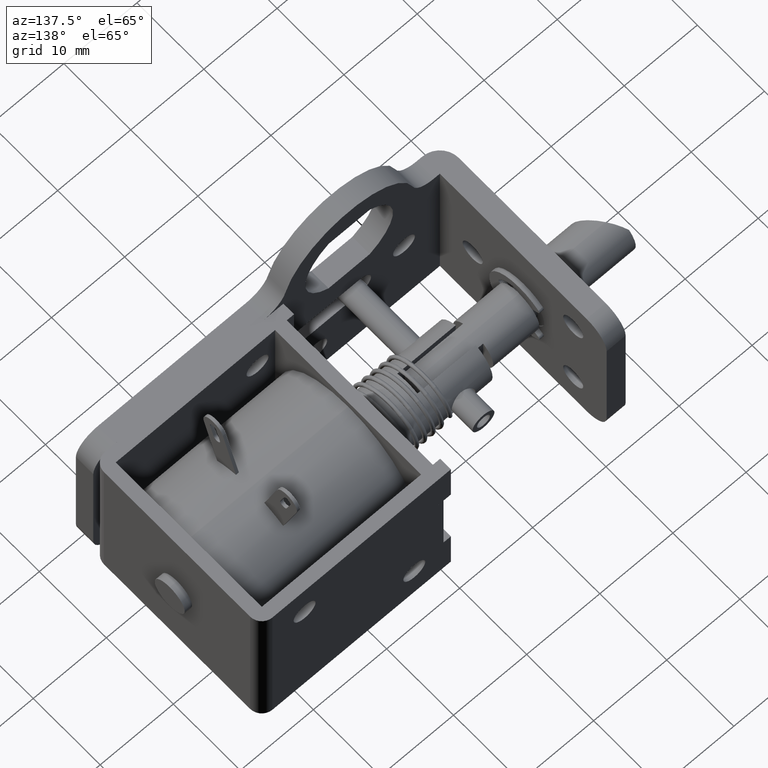
[diagram: clean part render]
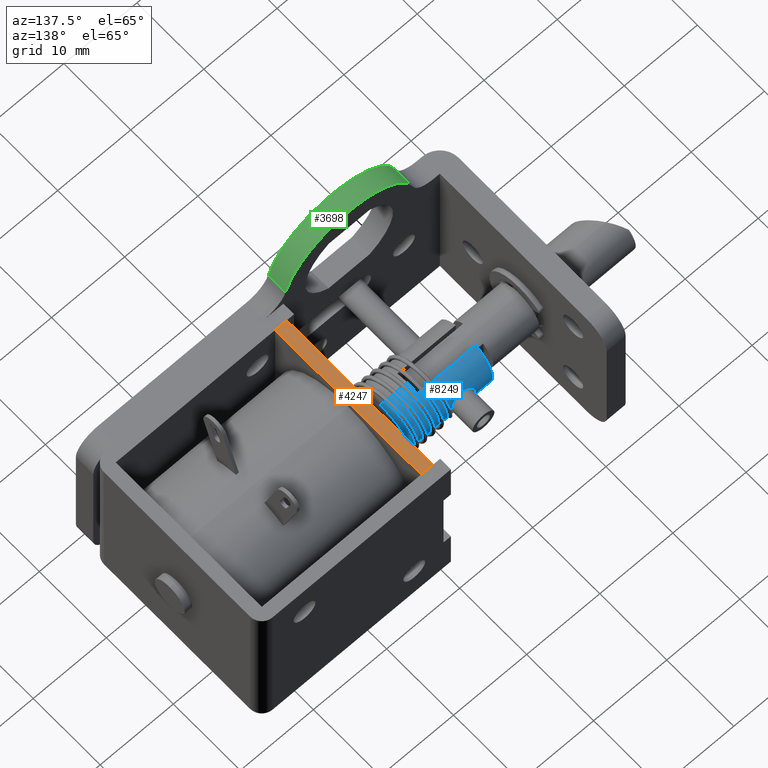
[diagram: same view with three faces highlighted in distinct colors, each labeled with its STEP entity id]
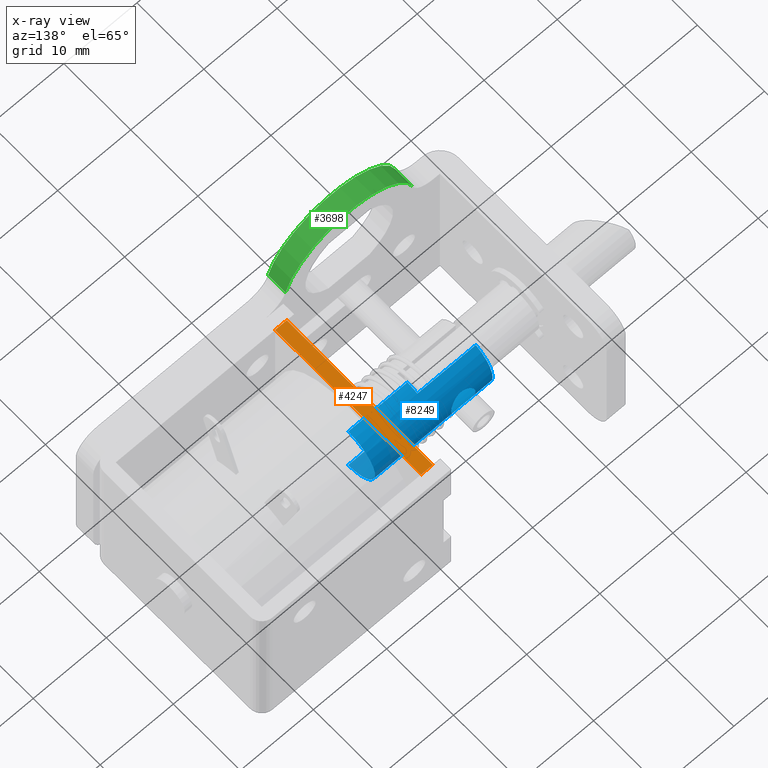
[diagram: x-ray of the same camera — body ghosted, the three highlighted faces saturated]
A machine part, auxiliary view with three faces highlighted in distinct colors.
The next image is the same camera in x-ray (body ghosted, the three faces saturated) — at least one of them is partly hidden behind the body in this view.
Their STEP definitions:

[orange] entity #4247 — the highlighted planar face has unit normal (0, 0, -1).
#291 = VECTOR ( 'NONE', #4824, 1000.000000000000000 ) ;
#567 = VECTOR ( 'NONE', #3996, 1000.000000000000000 ) ;
#1374 = CARTESIAN_POINT ( 'NONE',  ( 11.60000599999978000, 4.199999999999844700, 2.571673343026899800E-016 ) ) ;
#1510 = CARTESIAN_POINT ( 'NONE',  ( 10.00000000000000000, 26.00000000000000000, 1.591988259969080000E-015 ) ) ;
#1900 = EDGE_CURVE ( 'NONE', #6036, #8505, #2802, .T. ) ;
#2165 = DIRECTION ( 'NONE',  ( -0.0000000000000000000, -1.000000000000000000, -6.123031769111888800E-017 ) ) ;
#2702 = ORIENTED_EDGE ( 'NONE', *, *, #9634, .F. ) ;
#2714 = LINE ( 'NONE', #7247, #567 ) ;
#2802 = LINE ( 'NONE', #7826, #6842 ) ;
#3596 = ORIENTED_EDGE ( 'NONE', *, *, #8172, .T. ) ;
#3878 = PLANE ( 'NONE',  #8404 ) ;
#3996 = DIRECTION ( 'NONE',  ( -0.0000000000000000000, -1.000000000000000000, -6.123031769111888800E-017 ) ) ;
#4131 = ORIENTED_EDGE ( 'NONE', *, *, #1900, .T. ) ;
#4208 = VERTEX_POINT ( 'NONE', #1374 ) ;
#4247 = ADVANCED_FACE ( 'NONE', ( #5502 ), #3878, .F. ) ;
#4824 = DIRECTION ( 'NONE',  ( -1.000000000000000000, 0.0000000000000000000, 0.0000000000000000000 ) ) ;
#4967 = VECTOR ( 'NONE', #9118, 1000.000000000000000 ) ;
#5109 = VERTEX_POINT ( 'NONE', #10180 ) ;
#5502 = FACE_OUTER_BOUND ( 'NONE', #9276, .T. ) ;
#5509 = DIRECTION ( 'NONE',  ( 0.0000000000000000000, 1.000000000000000000, 6.123031769111888800E-017 ) ) ;
#6036 = VERTEX_POINT ( 'NONE', #1510 ) ;
#6287 = CARTESIAN_POINT ( 'NONE',  ( 10.00000000000000000, 4.199999999999844700, 2.571673343026899800E-016 ) ) ;
#6683 = ORIENTED_EDGE ( 'NONE', *, *, #8135, .F. ) ;
#6842 = VECTOR ( 'NONE', #2165, 1000.000000000000000 ) ;
#7141 = LINE ( 'NONE', #7455, #4967 ) ;
#7247 = CARTESIAN_POINT ( 'NONE',  ( 11.60000599999978000, 26.00000000000000000, 1.591988259969080000E-015 ) ) ;
#7455 = CARTESIAN_POINT ( 'NONE',  ( 1010.000000000000000, 4.199999999999844700, 2.571673343026899800E-016 ) ) ;
#7826 = CARTESIAN_POINT ( 'NONE',  ( 10.00000000000000000, 26.00000000000000000, 1.591988259969080000E-015 ) ) ;
#8135 = EDGE_CURVE ( 'NONE', #5109, #4208, #2714, .T. ) ;
#8172 = EDGE_CURVE ( 'NONE', #5109, #6036, #8703, .T. ) ;
#8404 = AXIS2_PLACEMENT_3D ( 'NONE', #9605, #10425, #5509 ) ;
#8505 = VERTEX_POINT ( 'NONE', #6287 ) ;
#8703 = LINE ( 'NONE', #8950, #291 ) ;
#8950 = CARTESIAN_POINT ( 'NONE',  ( 1010.000000000000000, 26.00000000000000000, 1.591988259969080000E-015 ) ) ;
#9118 = DIRECTION ( 'NONE',  ( -1.000000000000000000, 0.0000000000000000000, 0.0000000000000000000 ) ) ;
#9276 = EDGE_LOOP ( 'NONE', ( #4131, #2702, #6683, #3596 ) ) ;
#9605 = CARTESIAN_POINT ( 'NONE',  ( 1010.000000000000000, 26.00000000000000000, 1.591988259969080000E-015 ) ) ;
#9634 = EDGE_CURVE ( 'NONE', #4208, #8505, #7141, .T. ) ;
#10180 = CARTESIAN_POINT ( 'NONE',  ( 11.60000599999978000, 26.00000000000000000, 1.591988259969080000E-015 ) ) ;
#10425 = DIRECTION ( 'NONE',  ( 0.0000000000000000000, 6.123031769111888800E-017, -1.000000000000000000 ) ) ;

[blue] entity #8249 — the highlighted cylindrical surface (partial cylindrical patch) has radius 4 mm, axis along (1, 0, 0).
#204 = CARTESIAN_POINT ( 'NONE',  ( -0.06753559038307827000, 18.76785964583641000, -12.59604475133482600 ) ) ;
#220 = CARTESIAN_POINT ( 'NONE',  ( -0.5000000000000560700, 18.74383040220025300, -9.350000000000001400 ) ) ;
#241 = CARTESIAN_POINT ( 'NONE',  ( 1.105737245415268300, 19.08120923763093700, -10.56346833556857100 ) ) ;
#252 = CIRCLE ( 'NONE', #5966, 3.999999999999998200 ) ;
#256 = CARTESIAN_POINT ( 'NONE',  ( -2.150057528765353200, 19.10002373061292100, -11.10822098507555300 ) ) ;
#261 = LINE ( 'NONE', #5452, #6464 ) ;
#292 = CARTESIAN_POINT ( 'NONE',  ( -0.7173006319648996800, 18.74383040220041600, -12.65000000000000700 ) ) ;
#312 = DIRECTION ( 'NONE',  ( -1.084202172485504900E-016, 1.000000000000000000, -8.673617379884039400E-016 ) ) ;
#318 = ORIENTED_EDGE ( 'NONE', *, *, #6140, .F. ) ;
#411 = ORIENTED_EDGE ( 'NONE', *, *, #2646, .F. ) ;
#484 = VERTEX_POINT ( 'NONE', #1352 ) ;
#766 = CARTESIAN_POINT ( 'NONE',  ( -4.500000000000059500, 16.60000000000000100, -14.70809924354780000 ) ) ;
#986 = AXIS2_PLACEMENT_3D ( 'NONE', #4883, #5795, #6604 ) ;
#1042 = CARTESIAN_POINT ( 'NONE',  ( 3.499999999999944900, 16.60000000000000100, -7.291900756452239600 ) ) ;
#1044 = CARTESIAN_POINT ( 'NONE',  ( 0.3349363708465394900, 18.83309401342570400, -12.43948420912668800 ) ) ;
#1057 = CARTESIAN_POINT ( 'NONE',  ( -0.7186147149364304800, 18.74884790137403100, -9.360959618886081300 ) ) ;
#1080 = CARTESIAN_POINT ( 'NONE',  ( 0.9294082427553465000, 19.01376775380041900, -10.16886855001164500 ) ) ;
#1094 = CARTESIAN_POINT ( 'NONE',  ( -2.096222142802397000, 19.07807020723052100, -11.43169329776054800 ) ) ;
#1119 = EDGE_CURVE ( 'NONE', #484, #6658, #8916, .T. ) ;
#1352 = CARTESIAN_POINT ( 'NONE',  ( -0.5000000000000560700, 18.74383040220025300, -9.350000000000001400 ) ) ;
#1554 = EDGE_LOOP ( 'NONE', ( #6156, #8616 ) ) ;
#1638 = ORIENTED_EDGE ( 'NONE', *, *, #1671, .T. ) ;
#1671 = EDGE_CURVE ( 'NONE', #9285, #10484, #261, .T. ) ;
#1734 = ORIENTED_EDGE ( 'NONE', *, *, #7579, .F. ) ;
#1791 = CIRCLE ( 'NONE', #6824, 3.999999999999998200 ) ;
#1819 = CARTESIAN_POINT ( 'NONE',  ( -0.3914321825117519400, 18.74383040220041300, -12.64999999999999900 ) ) ;
#1854 = CARTESIAN_POINT ( 'NONE',  ( 0.7428932330982639400, 18.94929320826134900, -12.09052479064372100 ) ) ;
#1865 = CARTESIAN_POINT ( 'NONE',  ( -1.036497749401102700, 18.78180814445332600, -9.435931001775225400 ) ) ;
#1889 = CARTESIAN_POINT ( 'NONE',  ( 0.7421923131637421200, 18.94907012165612400, -9.908706701444380400 ) ) ;
#1909 = CARTESIAN_POINT ( 'NONE',  ( -1.980441708457529900, 19.03290025238499400, -11.73666349676569400 ) ) ;
#2146 = EDGE_CURVE ( 'NONE', #8843, #10026, #252, .T. ) ;
#2181 = B_SPLINE_CURVE_WITH_KNOTS ( 'NONE', 3,
 ( #7481, #1819, #5049, #204, #5847, #1044, #6667, #1854, #7512, #2669, #8337, #3471, #9173, #4264, #9982, #5077, #241, #5878, #1080, #6701, #1889, #7550, #2699, #8377, #3499, #9212, #4302, #10018 ),
 .UNSPECIFIED., .F., .F.,
 ( 4, 2, 2, 2, 2, 2, 2, 2, 2, 2, 2, 2, 2, 4 ),
 ( 0.005217289593526963600, 0.005543122599195184900, 0.005868955604863406200, 0.006520621616199849700, 0.006846454621868072700, 0.007172287627536295800, 0.007498120633204518800, 0.007823953638872742700, 0.008475619650209183600, 0.008801452655877404000, 0.009127285661545626200, 0.009453118667213846600, 0.009778951672882068800, 0.01043061768421851500 ),
 .UNSPECIFIED. ) ;
#2185 = CARTESIAN_POINT ( 'NONE',  ( 11.60000599999978000, 15.10000000000000100, -11.00000000000000000 ) ) ;
#2264 = CIRCLE ( 'NONE', #9787, 4.000000000000000000 ) ;
#2460 = CARTESIAN_POINT ( 'NONE',  ( -988.3999999999999800, 15.10000000000000100, -15.00000000000000000 ) ) ;
#2600 = EDGE_CURVE ( 'NONE', #9285, #3050, #1791, .T. ) ;
#2646 = EDGE_CURVE ( 'NONE', #3050, #6353, #3422, .T. ) ;
#2669 = CARTESIAN_POINT ( 'NONE',  ( 0.9294156070446063500, 19.01377419843168700, -11.83106060616870400 ) ) ;
#2680 = CARTESIAN_POINT ( 'NONE',  ( -1.516337056734011500, 18.88020109757534500, -9.682878062897568600 ) ) ;
#2699 = CARTESIAN_POINT ( 'NONE',  ( 0.5072692218189824900, 18.87951474900573200, -9.688796678522088300 ) ) ;
#2715 = CARTESIAN_POINT ( 'NONE',  ( -1.810092258438724200, 18.97178559572925800, -12.00876471403363200 ) ) ;
#2989 = DIRECTION ( 'NONE',  ( 0.0000000000000000000, 0.0000000000000000000, -1.000000000000000000 ) ) ;
#3050 = VERTEX_POINT ( 'NONE', #1042 ) ;
#3063 = CARTESIAN_POINT ( 'NONE',  ( 11.60000599999978000, 15.10000000000000100, -15.00000000000000000 ) ) ;
#3092 = LINE ( 'NONE', #5458, #7133 ) ;
#3359 = CARTESIAN_POINT ( 'NONE',  ( 11.60000599999978000, 15.10000000000000100, -6.999999999999999100 ) ) ;
#3381 = ORIENTED_EDGE ( 'NONE', *, *, #6593, .T. ) ;
#3422 = LINE ( 'NONE', #5192, #7484 ) ;
#3436 = CARTESIAN_POINT ( 'NONE',  ( 3.499999999999950300, 15.10000000000000100, -6.999999999999999100 ) ) ;
#3471 = CARTESIAN_POINT ( 'NONE',  ( 1.064369952494089700, 19.06525959387298700, -11.53562527590705000 ) ) ;
#3484 = CARTESIAN_POINT ( 'NONE',  ( -1.939655796742929500, 19.01717605724948600, -10.16569892671603600 ) ) ;
#3499 = CARTESIAN_POINT ( 'NONE',  ( 0.2361386495522919100, 18.81612661019488500, -9.519303659937046200 ) ) ;
#3515 = CARTESIAN_POINT ( 'NONE',  ( -1.589964975976169100, 18.90267654647967200, -12.24332639730453900 ) ) ;
#3826 = CYLINDRICAL_SURFACE ( 'NONE', #986, 4.000000000000000000 ) ;
#4182 = CARTESIAN_POINT ( 'NONE',  ( 3.499999999999950300, 15.10000000000000100, -11.00000000000000000 ) ) ;
#4264 = CARTESIAN_POINT ( 'NONE',  ( 1.138930177363835800, 19.09539820204943100, -11.21958228809458400 ) ) ;
#4284 = CARTESIAN_POINT ( 'NONE',  ( -2.096273477017530000, 19.07809058609491600, -10.56839171893643400 ) ) ;
#4302 = CARTESIAN_POINT ( 'NONE',  ( -0.2794281501017176200, 18.74383040220029900, -9.349999999999999600 ) ) ;
#4313 = CARTESIAN_POINT ( 'NONE',  ( -1.329654982597385100, 18.83608970858747300, -12.43027053265474900 ) ) ;
#4656 = ORIENTED_EDGE ( 'NONE', *, *, #2146, .F. ) ;
#4669 = DIRECTION ( 'NONE',  ( 1.000000000000000000, 0.0000000000000000000, 0.0000000000000000000 ) ) ;
#4883 = CARTESIAN_POINT ( 'NONE',  ( -988.3999999999999800, 15.10000000000000100, -11.00000000000000000 ) ) ;
#4907 = CARTESIAN_POINT ( 'NONE',  ( 3.499999999999950300, 15.10000000000000100, -15.00000000000000000 ) ) ;
#4996 = DIRECTION ( 'NONE',  ( -1.084202172485504900E-016, 1.000000000000000000, 5.204170427930423600E-015 ) ) ;
#5018 = LINE ( 'NONE', #2460, #5272 ) ;
#5049 = CARTESIAN_POINT ( 'NONE',  ( -0.2812789320463463500, 18.74883650243973300, -12.63906845747271600 ) ) ;
#5077 = CARTESIAN_POINT ( 'NONE',  ( 1.150024945210356400, 19.10001028989923800, -10.78265335598265700 ) ) ;
#5094 = CARTESIAN_POINT ( 'NONE',  ( -2.149942008712868900, 19.09997607859681800, -10.89003183310389000 ) ) ;
#5126 = CARTESIAN_POINT ( 'NONE',  ( -0.9367006681056958600, 18.76471638631812100, -12.60555909399086400 ) ) ;
#5144 = DIRECTION ( 'NONE',  ( -1.000000000000000000, -1.445602896647300000E-016, -1.114969784636862000E-032 ) ) ;
#5192 = CARTESIAN_POINT ( 'NONE',  ( -988.3999999999999800, 16.60000000000000100, -7.291900756452239600 ) ) ;
#5272 = VECTOR ( 'NONE', #9041, 1000.000000000000000 ) ;
#5452 = CARTESIAN_POINT ( 'NONE',  ( -988.3999999999999800, 15.10000000000000100, -6.999999999999999100 ) ) ;
#5458 = CARTESIAN_POINT ( 'NONE',  ( -988.3999999999999800, 16.60000000000000100, -14.70809924354780000 ) ) ;
#5795 = DIRECTION ( 'NONE',  ( 1.000000000000000000, 0.0000000000000000000, 0.0000000000000000000 ) ) ;
#5847 = CARTESIAN_POINT ( 'NONE',  ( 0.03567786533314162800, 18.78168355753668800, -12.56436332337278600 ) ) ;
#5864 = CARTESIAN_POINT ( 'NONE',  ( -0.6103697289985388100, 18.74383040220029900, -9.350000000000003200 ) ) ;
#5878 = CARTESIAN_POINT ( 'NONE',  ( 0.9812339639999905200, 19.03320324662074000, -10.26511297280850200 ) ) ;
#5900 = CARTESIAN_POINT ( 'NONE',  ( -2.139021615637083600, 19.09543605893123400, -11.21884326806750900 ) ) ;
#5932 = CARTESIAN_POINT ( 'NONE',  ( -0.5000000000000568400, 18.74383040220041300, -12.65000000000000000 ) ) ;
#5966 = AXIS2_PLACEMENT_3D ( 'NONE', #10052, #5144, #312 ) ;
#6140 = EDGE_CURVE ( 'NONE', #10026, #8513, #5018, .T. ) ;
#6156 = ORIENTED_EDGE ( 'NONE', *, *, #1119, .T. ) ;
#6353 = VERTEX_POINT ( 'NONE', #7689 ) ;
#6464 = VECTOR ( 'NONE', #9543, 1000.000000000000000 ) ;
#6593 = EDGE_CURVE ( 'NONE', #7388, #6353, #2264, .T. ) ;
#6604 = DIRECTION ( 'NONE',  ( 0.0000000000000000000, 0.0000000000000000000, -1.000000000000000000 ) ) ;
#6658 = VERTEX_POINT ( 'NONE', #8039 ) ;
#6667 = CARTESIAN_POINT ( 'NONE',  ( 0.5151825560660440200, 18.87984048331174600, -12.31833835164554900 ) ) ;
#6684 = CARTESIAN_POINT ( 'NONE',  ( -0.9311275352055353700, 18.76771994096976900, -9.403637004658271800 ) ) ;
#6701 = CARTESIAN_POINT ( 'NONE',  ( 0.8098741124718185100, 18.97171025475239500, -9.990932499238599700 ) ) ;
#6717 = CARTESIAN_POINT ( 'NONE',  ( -2.064481809371845800, 19.06529949372359700, -11.53551603874424100 ) ) ;
#6749 = CARTESIAN_POINT ( 'NONE',  ( 3.499999999999944900, 16.60000000000000100, -14.70809924354780000 ) ) ;
#6824 = AXIS2_PLACEMENT_3D ( 'NONE', #4182, #9899, #4996 ) ;
#6828 = DIRECTION ( 'NONE',  ( -1.000000000000000000, -0.0000000000000000000, -0.0000000000000000000 ) ) ;
#7133 = VECTOR ( 'NONE', #9549, 1000.000000000000000 ) ;
#7388 = VERTEX_POINT ( 'NONE', #766 ) ;
#7451 = AXIS2_PLACEMENT_3D ( 'NONE', #2185, #7850, #2989 ) ;
#7481 = CARTESIAN_POINT ( 'NONE',  ( -0.5000000000000568400, 18.74383040220041300, -12.65000000000000000 ) ) ;
#7484 = VECTOR ( 'NONE', #6828, 1000.000000000000000 ) ;
#7512 = CARTESIAN_POINT ( 'NONE',  ( 0.8104409775329418600, 18.97190586846379300, -12.00828327031182700 ) ) ;
#7533 = CARTESIAN_POINT ( 'NONE',  ( -1.335170352210083700, 18.83316688978839100, -9.560709498374166100 ) ) ;
#7550 = CARTESIAN_POINT ( 'NONE',  ( 0.5907469639847572300, 18.90289731625570000, -9.757327932673488700 ) ) ;
#7565 = CARTESIAN_POINT ( 'NONE',  ( -1.929400693566649900, 19.01376651276545700, -11.83112070791891500 ) ) ;
#7579 = EDGE_CURVE ( 'NONE', #7388, #8843, #3092, .T. ) ;
#7689 = CARTESIAN_POINT ( 'NONE',  ( -4.500000000000059500, 16.60000000000000100, -7.291900756452239600 ) ) ;
#7850 = DIRECTION ( 'NONE',  ( 1.000000000000000000, 0.0000000000000000000, 0.0000000000000000000 ) ) ;
#7980 = EDGE_LOOP ( 'NONE', ( #9335, #1638, #10232, #318, #4656, #1734, #3381, #411 ) ) ;
#8039 = CARTESIAN_POINT ( 'NONE',  ( -0.5000000000000568400, 18.74383040220041300, -12.65000000000000000 ) ) ;
#8049 = CIRCLE ( 'NONE', #7451, 4.000000000000000000 ) ;
#8249 = ADVANCED_FACE ( 'NONE', ( #8425, #8968 ), #3826, .T. ) ;
#8337 = CARTESIAN_POINT ( 'NONE',  ( 0.9812702030721203200, 19.03321645896137300, -11.73483764870041000 ) ) ;
#8357 = CARTESIAN_POINT ( 'NONE',  ( -1.817166641744656100, 18.97193844054163100, -9.983720880878507800 ) ) ;
#8377 = CARTESIAN_POINT ( 'NONE',  ( 0.3303232527499639400, 18.83625175232950600, -9.570171782548239700 ) ) ;
#8388 = CARTESIAN_POINT ( 'NONE',  ( -1.741016465009051800, 18.94869421164053600, -12.09259430378593300 ) ) ;
#8425 = FACE_BOUND ( 'NONE', #1554, .T. ) ;
#8513 = VERTEX_POINT ( 'NONE', #3063 ) ;
#8616 = ORIENTED_EDGE ( 'NONE', *, *, #10076, .T. ) ;
#8843 = VERTEX_POINT ( 'NONE', #6749 ) ;
#8916 = B_SPLINE_CURVE_WITH_KNOTS ( 'NONE', 3,
 ( #220, #5864, #1057, #6684, #1865, #7533, #2680, #8357, #3484, #9190, #4284, #9992, #5094, #256, #5900, #1094, #6717, #1909, #7565, #2715, #8388, #3515, #9226, #4313, #10033, #5126, #292, #5932 ),
 .UNSPECIFIED., .F., .F.,
 ( 4, 2, 2, 2, 2, 2, 2, 2, 2, 2, 2, 2, 2, 4 ),
 ( 4.336808689942017700E-018, 0.0003260805995954379400, 0.0006521611991908715400, 0.001304322398381741300, 0.001956483597572610900, 0.002282564197168046600, 0.002608644796763482300, 0.002934725396358917900, 0.003260805995954352700, 0.003586886595549788400, 0.003912967195145223600, 0.004239047794740658800, 0.004565128394336094100, 0.005217289593526963600 ),
 .UNSPECIFIED. ) ;
#8968 = FACE_OUTER_BOUND ( 'NONE', #7980, .T. ) ;
#9041 = DIRECTION ( 'NONE',  ( 1.000000000000000000, 0.0000000000000000000, 0.0000000000000000000 ) ) ;
#9173 = CARTESIAN_POINT ( 'NONE',  ( 1.095976334690305300, 19.07797123262066600, -11.43262922535031800 ) ) ;
#9190 = CARTESIAN_POINT ( 'NONE',  ( -2.063895080000386800, 19.06507347773626300, -10.46308850613411500 ) ) ;
#9212 = CARTESIAN_POINT ( 'NONE',  ( -0.06537901613683949600, 18.76431206178586900, -9.393434828042110500 ) ) ;
#9226 = CARTESIAN_POINT ( 'NONE',  ( -1.507816642984211900, 18.87964724628376700, -12.31084201979232900 ) ) ;
#9285 = VERTEX_POINT ( 'NONE', #3436 ) ;
#9335 = ORIENTED_EDGE ( 'NONE', *, *, #2600, .F. ) ;
#9543 = DIRECTION ( 'NONE',  ( 1.000000000000000000, 0.0000000000000000000, 0.0000000000000000000 ) ) ;
#9549 = DIRECTION ( 'NONE',  ( 1.000000000000000000, 0.0000000000000000000, 0.0000000000000000000 ) ) ;
#9577 = CARTESIAN_POINT ( 'NONE',  ( -4.500000000000059500, 15.10000000000000100, -11.00000000000000000 ) ) ;
#9787 = AXIS2_PLACEMENT_3D ( 'NONE', #9577, #4669, #10386 ) ;
#9867 = EDGE_CURVE ( 'NONE', #8513, #10484, #8049, .T. ) ;
#9899 = DIRECTION ( 'NONE',  ( -1.000000000000000000, -1.445602896647300000E-016, -0.0000000000000000000 ) ) ;
#9982 = CARTESIAN_POINT ( 'NONE',  ( 1.149987511107945200, 19.09999484833207700, -11.10895725794171800 ) ) ;
#9992 = CARTESIAN_POINT ( 'NONE',  ( -2.139170987148876900, 19.09549711836437100, -10.78207066144812000 ) ) ;
#10018 = CARTESIAN_POINT ( 'NONE',  ( -0.5000000000000560700, 18.74383040220025300, -9.350000000000001400 ) ) ;
#10026 = VERTEX_POINT ( 'NONE', #4907 ) ;
#10033 = CARTESIAN_POINT ( 'NONE',  ( -1.233746833712985300, 18.81569227676887800, -12.48176329198405400 ) ) ;
#10052 = CARTESIAN_POINT ( 'NONE',  ( 3.499999999999950300, 15.10000000000000100, -11.00000000000000000 ) ) ;
#10076 = EDGE_CURVE ( 'NONE', #6658, #484, #2181, .T. ) ;
#10232 = ORIENTED_EDGE ( 'NONE', *, *, #9867, .F. ) ;
#10386 = DIRECTION ( 'NONE',  ( 0.0000000000000000000, 0.0000000000000000000, -1.000000000000000000 ) ) ;
#10484 = VERTEX_POINT ( 'NONE', #3359 ) ;

[green] entity #3698 — the highlighted cylindrical surface (partial cylindrical patch) has radius 9 mm, axis along (0, -1, 0).
#482 = CARTESIAN_POINT ( 'NONE',  ( 0.0000000000000000000, 0.0000000000000000000, 0.0000000000000000000 ) ) ;
#1001 = VECTOR ( 'NONE', #7308, 1000.000000000000000 ) ;
#1276 = CARTESIAN_POINT ( 'NONE',  ( 0.0000000000000000000, 1000.000000000000000, 0.0000000000000000000 ) ) ;
#1309 = DIRECTION ( 'NONE',  ( 0.0000000000000000000, 0.0000000000000000000, 1.000000000000000000 ) ) ;
#1418 = EDGE_CURVE ( 'NONE', #8354, #6610, #8803, .T. ) ;
#1645 = ORIENTED_EDGE ( 'NONE', *, *, #3700, .F. ) ;
#2012 = CARTESIAN_POINT ( 'NONE',  ( 8.714212575538049100, 2.599999999999825100, 2.249999819629894900 ) ) ;
#2111 = VERTEX_POINT ( 'NONE', #5877 ) ;
#2151 = CARTESIAN_POINT ( 'NONE',  ( 8.714212575538049100, 1000.000000000000000, 2.249999819629894900 ) ) ;
#2270 = VERTEX_POINT ( 'NONE', #3016 ) ;
#2772 = EDGE_CURVE ( 'NONE', #8354, #2111, #4289, .T. ) ;
#3016 = CARTESIAN_POINT ( 'NONE',  ( -8.714212614807950200, 0.0000000000000000000, 2.249999667538200100 ) ) ;
#3157 = LINE ( 'NONE', #9749, #1001 ) ;
#3591 = DIRECTION ( 'NONE',  ( -0.0000000000000000000, -1.000000000000000000, -0.0000000000000000000 ) ) ;
#3698 = ADVANCED_FACE ( 'NONE', ( #6004 ), #7956, .T. ) ;
#3700 = EDGE_CURVE ( 'NONE', #2111, #2270, #10130, .T. ) ;
#4289 = LINE ( 'NONE', #2151, #10549 ) ;
#5443 = EDGE_LOOP ( 'NONE', ( #1645, #8551, #10427, #7296 ) ) ;
#5877 = CARTESIAN_POINT ( 'NONE',  ( 8.714212575538049100, 0.0000000000000000000, 2.249999819629894900 ) ) ;
#6004 = FACE_OUTER_BOUND ( 'NONE', #5443, .T. ) ;
#6109 = DIRECTION ( 'NONE',  ( -0.0000000000000000000, -1.000000000000000000, -0.0000000000000000000 ) ) ;
#6115 = EDGE_CURVE ( 'NONE', #6610, #2270, #3157, .T. ) ;
#6610 = VERTEX_POINT ( 'NONE', #8799 ) ;
#6910 = DIRECTION ( 'NONE',  ( 0.0000000000000000000, 0.0000000000000000000, -1.000000000000000000 ) ) ;
#7045 = DIRECTION ( 'NONE',  ( 0.0000000000000000000, -1.000000000000000000, 0.0000000000000000000 ) ) ;
#7296 = ORIENTED_EDGE ( 'NONE', *, *, #6115, .T. ) ;
#7308 = DIRECTION ( 'NONE',  ( 0.0000000000000000000, -1.000000000000000000, 0.0000000000000000000 ) ) ;
#7713 = DIRECTION ( 'NONE',  ( 0.0000000000000000000, -1.000000000000000000, 0.0000000000000000000 ) ) ;
#7956 = CYLINDRICAL_SURFACE ( 'NONE', #9910, 9.000000000000000000 ) ;
#8250 = AXIS2_PLACEMENT_3D ( 'NONE', #8471, #3591, #9311 ) ;
#8354 = VERTEX_POINT ( 'NONE', #2012 ) ;
#8471 = CARTESIAN_POINT ( 'NONE',  ( 0.0000000000000000000, 2.599999999999825100, 0.0000000000000000000 ) ) ;
#8551 = ORIENTED_EDGE ( 'NONE', *, *, #2772, .F. ) ;
#8799 = CARTESIAN_POINT ( 'NONE',  ( -8.714212614807950200, 2.599999999999825100, 2.249999667538200100 ) ) ;
#8803 = CIRCLE ( 'NONE', #8250, 9.000000000000000000 ) ;
#9311 = DIRECTION ( 'NONE',  ( 0.0000000000000000000, 0.0000000000000000000, 1.000000000000000000 ) ) ;
#9383 = AXIS2_PLACEMENT_3D ( 'NONE', #482, #6109, #1309 ) ;
#9749 = CARTESIAN_POINT ( 'NONE',  ( -8.714212614807950200, 1000.000000000000000, 2.249999667538200100 ) ) ;
#9910 = AXIS2_PLACEMENT_3D ( 'NONE', #1276, #7713, #6910 ) ;
#10130 = CIRCLE ( 'NONE', #9383, 9.000000000000000000 ) ;
#10427 = ORIENTED_EDGE ( 'NONE', *, *, #1418, .T. ) ;
#10549 = VECTOR ( 'NONE', #7045, 1000.000000000000000 ) ;